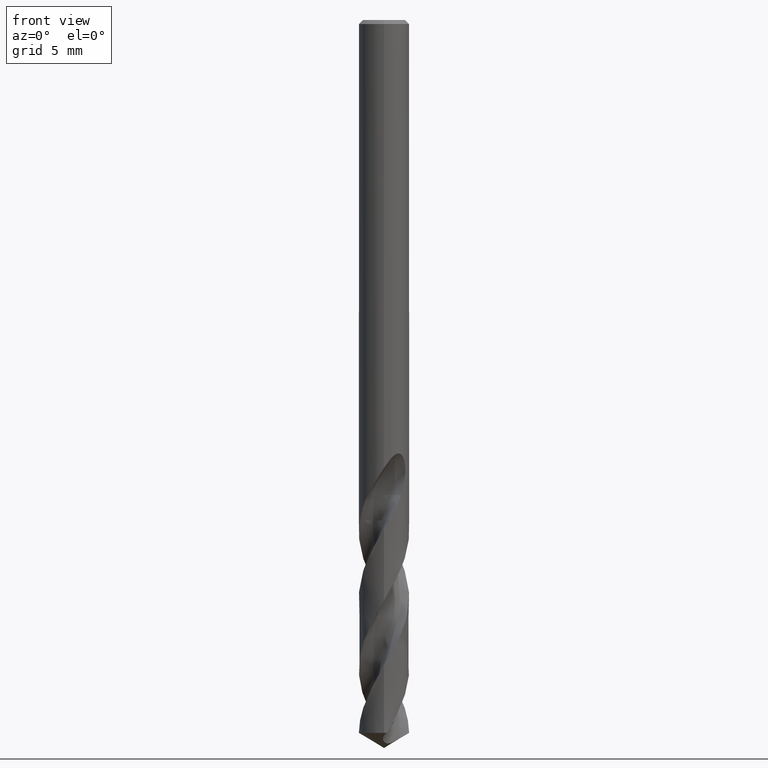
[diagram: clean part render]
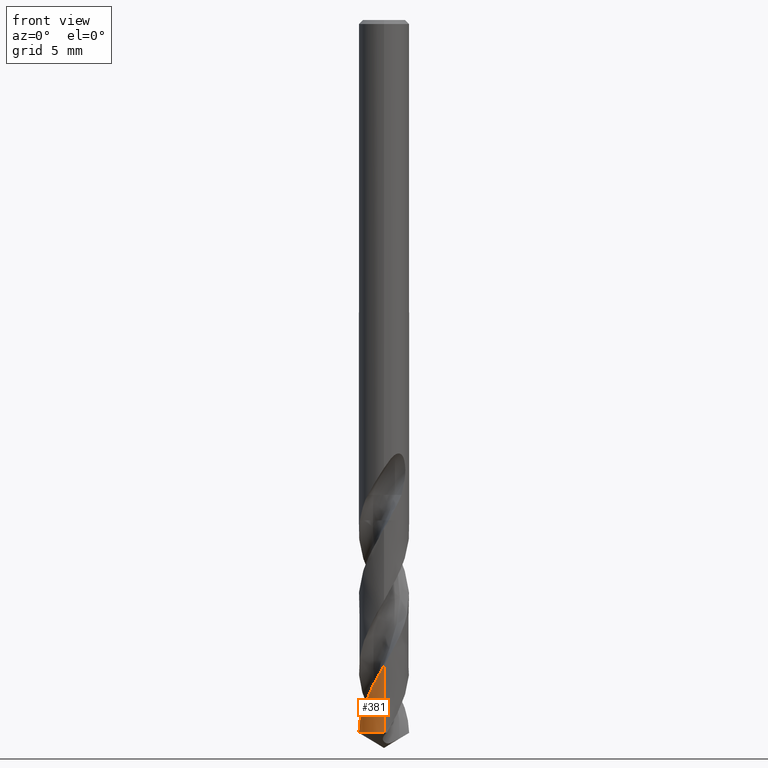
[diagram: same view with one face highlighted and labeled with its STEP entity id]
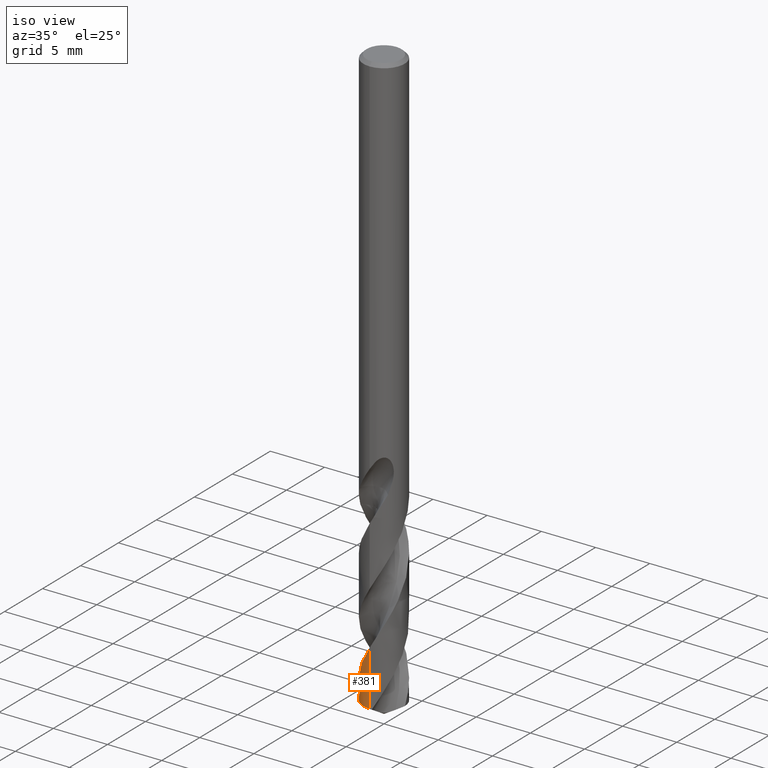
[diagram: same view with one face highlighted and labeled with its STEP entity id]
A machine part, front view. The second image highlights one B-rep face of the part: STEP entity #381.
A second angle (iso view) of the same face is appended — the face is thin or edge-on in the first view.
In plain terms, the highlighted conical surface has half-angle 0 deg.
Its self-contained STEP definition (entity closure, byte-faithful):
#381=ADVANCED_FACE('',(#906),#907,.T.);
#405=VERTEX_POINT('',#932);
#457=EDGE_CURVE('',#405,#749,#989,.T.);
#515=VERTEX_POINT('',#1055);
#527=EDGE_CURVE('',#515,#749,#1068,.T.);
#661=EDGE_CURVE('',#515,#405,#1215,.T.);
#749=VERTEX_POINT('',#1307);
#906=FACE_OUTER_BOUND('',#2395,.T.);
#907=CONICAL_SURFACE('',#2396,1.89995,6.22728410368348E-006);
#932=CARTESIAN_POINT('',(1.33755547913093E-015,-1.89996831365388,-48.7700557640567));
#989=B_SPLINE_CURVE_WITH_KNOTS('',3,(#3129,#3130,#3131,#3132,#3133,#3134,#3135,#3136,#3137,#3138,#3139,#3140,#3141,#3142,#3143,#3144,#3145,#3146,#3147,#3148,#3149,#3150,#3151,#3152,#3153,#3154,#3155,#3156,#3157,#3158,#3159,#3160,#3161,#3162,#3163,#3164,#3165,#3166,#3167,#3168,#3169,#3170,#3171,#3172,#3173,#3174,#3175,#3176,#3177,#3178,#3179,#3180,#3181,#3182,#3183,#3184,#3185,#3186,#3187,#3188,#3189,#3190,#3191,#3192,#3193,#3194),.UNSPECIFIED.,.F.,.F.,(4,2,2,2,2,2,2,2,2,2,2,2,2,2,2,2,2,2,2,2,2,2,2,2,2,2,2,2,2,2,2,2,4),(0.0,0.325308284926304,0.647283734944763,1.76655498756776,2.08620102171956,2.72971947100455,3.07448095807378,3.41504570890271,4.61025299254639,4.76086681928077,5.88854405067708,6.23789477902519,6.91385271136333,7.28410406325834,7.62392921902045,8.30885518402601,9.04903064115196,9.77978137915064,10.5164148421424,11.2496999243147,11.9812560539145,12.7168108582109,13.0817137921324,14.297379091576,14.4273022695419,15.4415119071292,16.2089607655825,16.7880455564394,17.2229261990625,17.8752679417714,18.2014101954615,18.3644497460851,18.5273423781839),.UNSPECIFIED.);
#1055=CARTESIAN_POINT('',(2.3267520722625E-016,-1.9,-53.8583648238476));
#1068=CIRCLE('',#4297,1.9);
#1215=LINE('',#6383,#6384);
#1307=CARTESIAN_POINT('',(-1.89932453673046,-0.0506587028419308,-53.8583648238476));
#2395=EDGE_LOOP('',(#7352,#7353,#7354));
#2396=AXIS2_PLACEMENT_3D('',#7355,#7356,#7357);
#3129=CARTESIAN_POINT('',(-0.350799241581055,1.86723324985785,-37.8045332855427));
#3130=CARTESIAN_POINT('',(-0.297548232263114,1.87723817290404,-37.898462078865));
#3131=CARTESIAN_POINT('',(-0.243896620978471,1.8849599677768,-37.9923402999002));
#3132=CARTESIAN_POINT('',(-0.136639366473604,1.8957409937232,-38.179242433065));
#3133=CARTESIAN_POINT('',(-0.0831076613150236,1.89884047484478,-38.2721402681722));
#3134=CARTESIAN_POINT('',(0.156702890359523,1.90257135139847,-38.6884432402145));
#3135=CARTESIAN_POINT('',(0.34250187666515,1.8780638728212,-39.010413764121));
#3136=CARTESIAN_POINT('',(0.573044858379734,1.81221270768239,-39.4259258230766));
#3137=CARTESIAN_POINT('',(0.623597508469598,1.79544414669559,-39.5181388797178));
#3138=CARTESIAN_POINT('',(0.77356528438704,1.73860455679802,-39.7963732214763));
#3139=CARTESIAN_POINT('',(0.870385551630752,1.69221375476177,-39.9821342855643));
#3140=CARTESIAN_POINT('',(1.01228298122824,1.60880655145242,-40.2676258353867));
#3141=CARTESIAN_POINT('',(1.06045053660984,1.57747437033425,-40.3671456296878));
#3142=CARTESIAN_POINT('',(1.15325096358405,1.51093275071956,-40.565089396069));
#3143=CARTESIAN_POINT('',(1.19784594057722,1.47582836353398,-40.6633403545807));
#3144=CARTESIAN_POINT('',(1.39152595943799,1.3088046721348,-41.1070460394639));
#3145=CARTESIAN_POINT('',(1.52097632411297,1.15586178708784,-41.4506266843318));
#3146=CARTESIAN_POINT('',(1.63733016667109,0.964103527068525,-41.8394029745364));
#3147=CARTESIAN_POINT('',(1.6499211383234,0.942394016228268,-41.8828958711108));
#3148=CARTESIAN_POINT('',(1.75309600520392,0.756092150469632,-42.2522683944308));
#3149=CARTESIAN_POINT('',(1.81927468441964,0.579063302155865,-42.5769120105607));
#3150=CARTESIAN_POINT('',(1.87049331470505,0.33821558570768,-43.0037076100728));
#3151=CARTESIAN_POINT('',(1.87997663798689,0.280749277511655,-43.1045511994534));
#3152=CARTESIAN_POINT('',(1.9000216369088,0.111129980213664,-43.4009297021076));
#3153=CARTESIAN_POINT('',(1.90327228281997,-0.00167873185323555,-43.5961367905738));
#3154=CARTESIAN_POINT('',(1.89280028323401,-0.175724226641432,-43.8985354556236));
#3155=CARTESIAN_POINT('',(1.88609500508841,-0.237114950701912,-44.005457331926));
#3156=CARTESIAN_POINT('',(1.86752129934026,-0.354042792714593,-44.2106668827755));
#3157=CARTESIAN_POINT('',(1.85613811735344,-0.40954942021287,-44.3087846374584));
#3158=CARTESIAN_POINT('',(1.81440474935007,-0.575098180145651,-44.6050450983127));
#3159=CARTESIAN_POINT('',(1.77659050751158,-0.683041946512035,-44.8028556823792));
#3160=CARTESIAN_POINT('',(1.67820127513706,-0.899254142745539,-45.2148236800871));
#3161=CARTESIAN_POINT('',(1.61629921005055,-1.00627255800337,-45.4279362003083));
#3162=CARTESIAN_POINT('',(1.47357767533621,-1.20548815648304,-45.8532465565161));
#3163=CARTESIAN_POINT('',(1.39329600693869,-1.29745381010629,-46.0642162590753));
#3164=CARTESIAN_POINT('',(1.21545011226714,-1.46546619962015,-46.4884235882691));
#3165=CARTESIAN_POINT('',(1.11824055131431,-1.5409185900484,-46.7006356090125));
#3166=CARTESIAN_POINT('',(0.911181285101367,-1.67168003619446,-47.1257094943204));
#3167=CARTESIAN_POINT('',(0.801784693542237,-1.72682970506032,-47.3373404876834));
#3168=CARTESIAN_POINT('',(0.574070363689587,-1.81526370806066,-47.7608206942374));
#3169=CARTESIAN_POINT('',(0.456411694644413,-1.84835181608348,-47.9717292506813));
#3170=CARTESIAN_POINT('',(0.215843856176509,-1.89163960178047,-48.3960146909257));
#3171=CARTESIAN_POINT('',(0.093350642992633,-1.90163394963798,-48.6082262322338));
#3172=CARTESIAN_POINT('',(-0.0901673588558791,-1.89880412851341,-48.9263624134069));
#3173=CARTESIAN_POINT('',(-0.150917937965422,-1.89494309426466,-49.0317133636007));
#3174=CARTESIAN_POINT('',(-0.412748064090248,-1.86563618839931,-49.4887779395908));
#3175=CARTESIAN_POINT('',(-0.609334390894819,-1.81100483951397,-49.8384344789959));
#3176=CARTESIAN_POINT('',(-0.813276754316916,-1.71725499017082,-50.2275025252018));
#3177=CARTESIAN_POINT('',(-0.832806021439674,-1.70786955331039,-50.2650608595817));
#3178=CARTESIAN_POINT('',(-1.00331639527817,-1.62230622229733,-50.5959637535929));
#3179=CARTESIAN_POINT('',(-1.14373155553264,-1.5265793659777,-50.8885034091241));
#3180=CARTESIAN_POINT('',(-1.36489256147245,-1.32793346666236,-51.4037744448352));
#3181=CARTESIAN_POINT('',(-1.45121328212201,-1.23299993868539,-51.6251920153099));
#3182=CARTESIAN_POINT('',(-1.58471422571002,-1.05259339368203,-52.0147719859686));
#3183=CARTESIAN_POINT('',(-1.63615785297706,-0.970711353873689,-52.1820587058278));
#3184=CARTESIAN_POINT('',(-1.71497117487367,-0.82103867981294,-52.4753299807322));
#3185=CARTESIAN_POINT('',(-1.74506168642003,-0.754976545227594,-52.6009098441941));
#3186=CARTESIAN_POINT('',(-1.81065716303718,-0.585946451571351,-52.9154210635537));
#3187=CARTESIAN_POINT('',(-1.8412422583708,-0.48130593182586,-53.103953023467));
#3188=CARTESIAN_POINT('',(-1.87343147596394,-0.321254427455743,-53.3869839971107));
#3189=CARTESIAN_POINT('',(-1.88186581974239,-0.267461006755059,-53.4812543711806));
#3190=CARTESIAN_POINT('',(-1.89103583015725,-0.18632886427856,-53.6227337764385));
#3191=CARTESIAN_POINT('',(-1.89351066149718,-0.159227168928442,-53.6698787362323));
#3192=CARTESIAN_POINT('',(-1.89729266521471,-0.104963593889917,-53.7641468675974));
#3193=CARTESIAN_POINT('',(-1.89859983210293,-0.0778187269661725,-53.8112301717848));
#3194=CARTESIAN_POINT('',(-1.89932453673046,-0.0506587028419236,-53.8583648238476));
#4297=AXIS2_PLACEMENT_3D('',#7510,#7511,#7512);
#6383=CARTESIAN_POINT('',(2.32618061384833E-016,-1.89995,-45.8291824119238));
#6384=VECTOR('',#7642,1.0);
#7352=ORIENTED_EDGE('',*,*,#661,.T.);
#7353=ORIENTED_EDGE('',*,*,#457,.T.);
#7354=ORIENTED_EDGE('',*,*,#527,.F.);
#7355=CARTESIAN_POINT('',(0.0,0.0,-45.8291824119238));
#7356=DIRECTION('',(0.0,-0.0,-1.0));
#7357=DIRECTION('',(0.0,1.0,0.0));
#7510=CARTESIAN_POINT('',(0.0,0.0,-53.8583648238476));
#7511=DIRECTION('',(0.0,0.0,-1.0));
#7512=DIRECTION('',(0.0,1.0,0.0));
#7642=DIRECTION('',(-7.62597168037859E-022,6.22728410364323E-006,0.999999999980611));